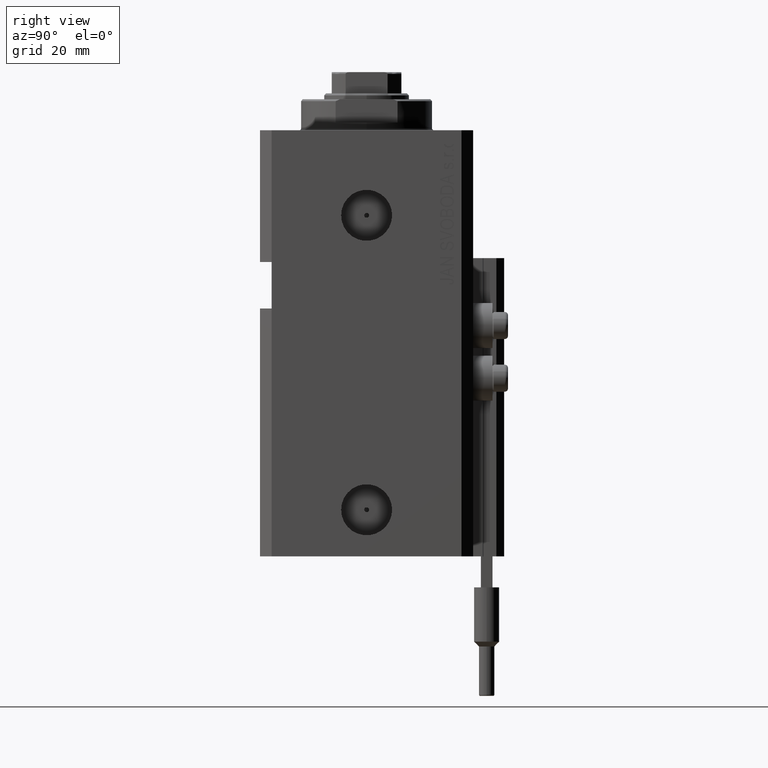
[diagram: clean part render]
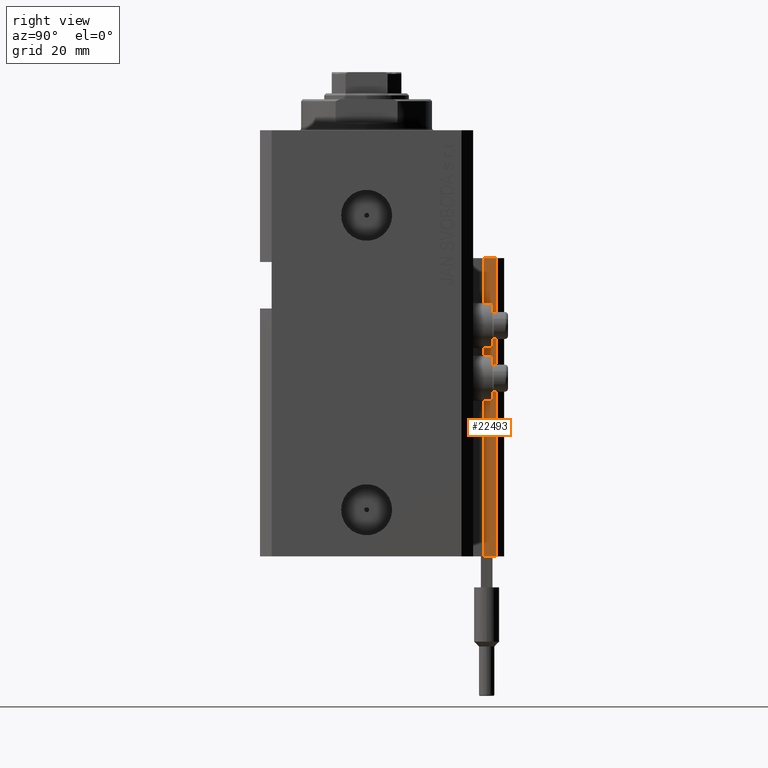
[diagram: same view with one face highlighted and labeled with its STEP entity id]
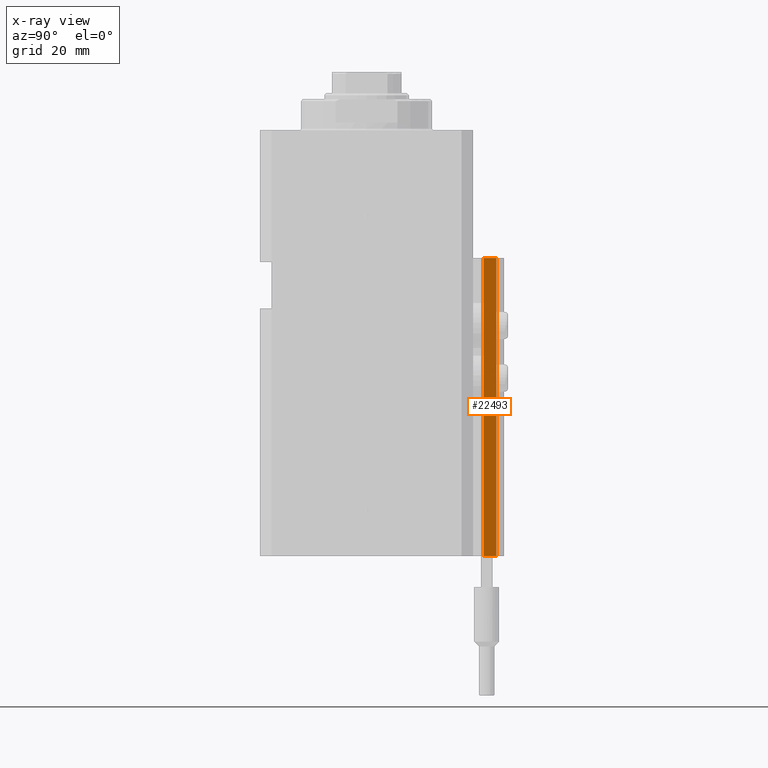
[diagram: x-ray of the same camera — body ghosted, the highlighted face saturated]
A machine part, right view. The second image highlights one B-rep face of the part: STEP entity #22493.
The next image is the same camera in x-ray: the body ghosted, the highlighted face saturated — about 0% of this face is hidden behind the body in this view.
In plain terms, the highlighted planar face has unit normal (1, 0, 0).
Its self-contained STEP definition (entity closure, byte-faithful):
#2282 = ORIENTED_EDGE ( 'NONE', *, *, #9811, .T. ) ;
#2772 = EDGE_CURVE ( 'NONE', #31909, #36852, #45851, .T. ) ;
#4119 = FACE_OUTER_BOUND ( 'NONE', #48387, .T. ) ;
#8045 = CARTESIAN_POINT ( 'NONE',  ( 12.00000000000000178, 30.20000000000002061, -110.0000000000000000 ) ) ;
#8752 = CARTESIAN_POINT ( 'NONE',  ( 12.00000000000000178, 30.20000000000002061, -110.0000000000000000 ) ) ;
#9811 = EDGE_CURVE ( 'NONE', #44718, #31909, #41350, .T. ) ;
#10961 = VECTOR ( 'NONE', #46328, 1000.000000000000000 ) ;
#12706 = VECTOR ( 'NONE', #41580, 1000.000000000000000 ) ;
#18253 = LINE ( 'NONE', #33544, #30770 ) ;
#19093 = DIRECTION ( 'NONE',  ( -5.256737805990335883E-16, 1.000000000000000000, 0.000000000000000000 ) ) ;
#20169 = CARTESIAN_POINT ( 'NONE',  ( 12.00000000000000000, 33.50000000000001421, -33.00000000000000000 ) ) ;
#21119 = EDGE_CURVE ( 'NONE', #44718, #21526, #18253, .T. ) ;
#21526 = VERTEX_POINT ( 'NONE', #41134 ) ;
#22493 = ADVANCED_FACE ( 'NONE', ( #4119 ), #42502, .T. ) ;
#22800 = DIRECTION ( 'NONE',  ( 1.000000000000000000, 5.256737805990335883E-16, -0.000000000000000000 ) ) ;
#26112 = DIRECTION ( 'NONE',  ( -5.256737805990334897E-16, 1.000000000000000000, 0.000000000000000000 ) ) ;
#26258 = ORIENTED_EDGE ( 'NONE', *, *, #36547, .F. ) ;
#30770 = VECTOR ( 'NONE', #44403, 1000.000000000000000 ) ;
#30876 = ORIENTED_EDGE ( 'NONE', *, *, #21119, .F. ) ;
#31909 = VERTEX_POINT ( 'NONE', #47029 ) ;
#33544 = CARTESIAN_POINT ( 'NONE',  ( 12.00000000000000178, 30.20000000000002061, -110.0000000000000000 ) ) ;
#34502 = CARTESIAN_POINT ( 'NONE',  ( 12.00000000000000000, 33.50000000000001421, -110.0000000000000000 ) ) ;
#35828 = CARTESIAN_POINT ( 'NONE',  ( 12.00000000000000178, 30.20000000000002061, -33.00000000000000000 ) ) ;
#36547 = EDGE_CURVE ( 'NONE', #21526, #36852, #47171, .T. ) ;
#36852 = VERTEX_POINT ( 'NONE', #20169 ) ;
#38163 = ORIENTED_EDGE ( 'NONE', *, *, #2772, .T. ) ;
#41134 = CARTESIAN_POINT ( 'NONE',  ( 12.00000000000000178, 30.20000000000002061, -33.00000000000000000 ) ) ;
#41350 = LINE ( 'NONE', #45760, #12706 ) ;
#41580 = DIRECTION ( 'NONE',  ( -5.256737805990334897E-16, 1.000000000000000000, 0.000000000000000000 ) ) ;
#42502 = PLANE ( 'NONE',  #48172 ) ;
#44403 = DIRECTION ( 'NONE',  ( 0.000000000000000000, 0.000000000000000000, 1.000000000000000000 ) ) ;
#44718 = VERTEX_POINT ( 'NONE', #8045 ) ;
#45760 = CARTESIAN_POINT ( 'NONE',  ( 12.00000000000000178, 30.20000000000002061, -110.0000000000000000 ) ) ;
#45851 = LINE ( 'NONE', #34502, #10961 ) ;
#46328 = DIRECTION ( 'NONE',  ( 0.000000000000000000, 0.000000000000000000, 1.000000000000000000 ) ) ;
#47029 = CARTESIAN_POINT ( 'NONE',  ( 12.00000000000000000, 33.50000000000001421, -110.0000000000000000 ) ) ;
#47171 = LINE ( 'NONE', #35828, #47753 ) ;
#47753 = VECTOR ( 'NONE', #26112, 1000.000000000000000 ) ;
#48172 = AXIS2_PLACEMENT_3D ( 'NONE', #8752, #22800, #19093 ) ;
#48387 = EDGE_LOOP ( 'NONE', ( #26258, #30876, #2282, #38163 ) ) ;